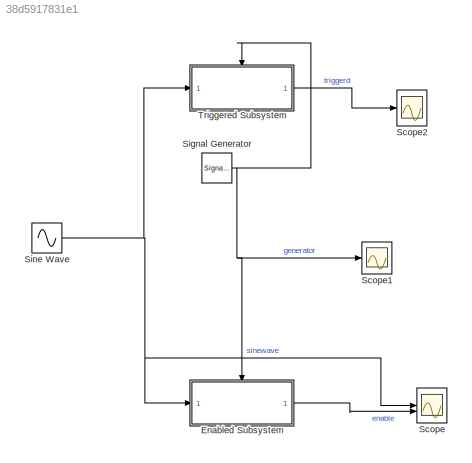
MODEL slx_38d5917831e1
KIND model
CONFIG AbsTol = auto
CONFIG EnableMultiTasking = off
CONFIG FixedStep = auto
CONFIG MaxStep = 0.01
CONFIG MinStep = auto
CONFIG RelTol = 1e-3
CONFIG SampleTimeConstraint = Unconstrained
CONFIG SolverName = VariableStepAuto
CONFIG StartTime = 0.0
CONFIG StopTime = 10.0
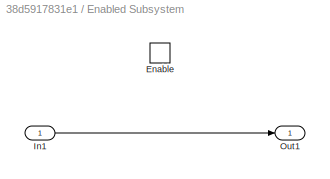
BLOCK [SubSystem] Enabled Subsystem
  TreatAsAtomicUnit = on
BLOCK [EnablePort] Enabled Subsystem/Enable
  StatesWhenEnabling = reset
BLOCK [Inport] Enabled Subsystem/In1
BLOCK [Outport] Enabled Subsystem/Out1
BLOCK [Scope] Scope
  Floating = off
  NumInputPorts = 2
  ScopeSpecificationString = Simulink.scopes.TimeScopeBlockCfg('CurrentConfiguration', extmgr.ConfigurationSet(extmgr.Configuration('Core','General UI',true),extmgr.Configuration('Core','Source UI',true),extmgr.Configuration('Sources','WiredSimulink',true),extmgr.Configuration('Visuals','Time Domain',true,'SerializedDisplays',{struct('MinYLimReal','-1.25','MaxYLimReal','1.24999','YLabelReal','','MinYLimMag','0.00000','MaxYLim...<+1987ch>
BLOCK [Scope] Scope1
  Floating = off
  NumInputPorts = 1
  ScopeSpecificationString = Simulink.scopes.TimeScopeBlockCfg('CurrentConfiguration', extmgr.ConfigurationSet(extmgr.Configuration('Core','General UI',true),extmgr.Configuration('Core','Source UI',true),extmgr.Configuration('Sources','WiredSimulink',true,'DataLoggingVariableName','ScopeData1'),extmgr.Configuration('Visuals','Time Domain',true,'SerializedDisplays',{struct('MinYLimReal','-1.25','MaxYLimReal','1.25','YLabelReal...<+1379ch>
BLOCK [Scope] Scope2
  Floating = off
  NumInputPorts = 1
  ScopeSpecificationString = Simulink.scopes.TimeScopeBlockCfg('CurrentConfiguration', extmgr.ConfigurationSet(extmgr.Configuration('Core','General UI',true),extmgr.Configuration('Core','Source UI',true),extmgr.Configuration('Sources','WiredSimulink',true,'DataLoggingVariableName','ScopeData2'),extmgr.Configuration('Visuals','Time Domain',true,'SerializedDisplays',{struct('MinYLimReal','-0.78014','MaxYLimReal','1.14341','YLab...<+1395ch>
BLOCK [SignalGenerator] Signal Generator
  Frequency = 2.5
  Units = rad/sec
  WaveForm = square
BLOCK [Sin] Sine Wave
  SampleTime = 0
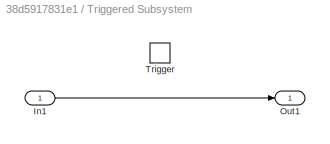
BLOCK [SubSystem] Triggered Subsystem
  TreatAsAtomicUnit = on
BLOCK [Inport] Triggered Subsystem/In1
BLOCK [Outport] Triggered Subsystem/Out1
BLOCK [TriggerPort] Triggered Subsystem/Trigger
  InitialTriggerSignalState = positive
  StatesWhenEnabling = held
  VariantControl = (inherit)
LINE Enabled Subsystem/In1:1 -> Enabled Subsystem/Out1:1
LINE Enabled Subsystem:1 -> Scope:2
NET Signal Generator:1 -> Enabled Subsystem:enable, Scope1:1, Triggered Subsystem:trigger
NET Sine Wave:1 -> Enabled Subsystem:1, Scope:1, Triggered Subsystem:1
LINE Triggered Subsystem/In1:1 -> Triggered Subsystem/Out1:1
LINE Triggered Subsystem:1 -> Scope2:1
note: NET lines group one-source signal fan-out (src -> all destinations, sorted); 1:1 wires keep LINE
